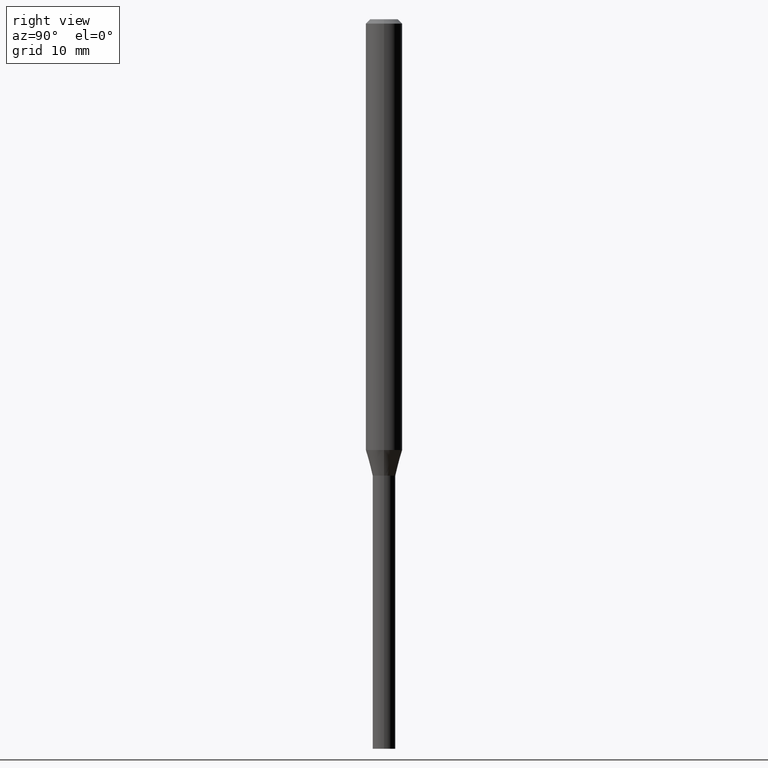
[diagram: clean part render]
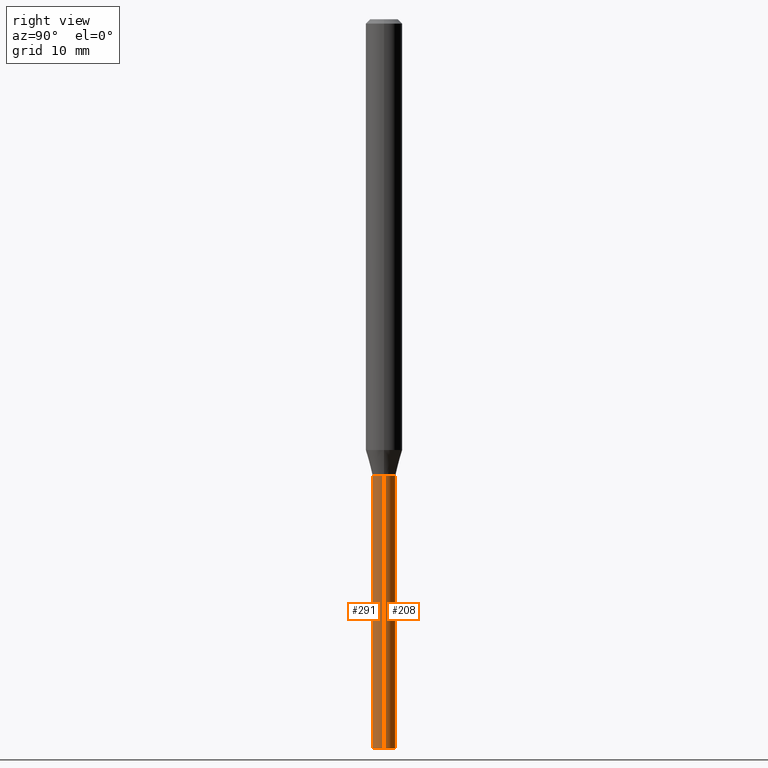
[diagram: same view with one multi-face feature highlighted, each face labeled with its STEP entity id]
A machine part, right view. The highlighted faces form ONE feature: a constant-radius fillet chain: 2 tangent blend faces with common blend radius 0.9906 mm. The faces share edges in the B-rep.
Their STEP definitions:
[1] entity #291 (Cylinder):
#3 = EDGE_LOOP ( 'NONE', ( #464, #337, #123, #191 ) ) ;
#8 = VERTEX_POINT ( 'NONE', #62 ) ;
#15 = VECTOR ( 'NONE', #206, 39.37007874015748143 ) ;
#19 = EDGE_CURVE ( 'NONE', #84, #235, #60, .T. ) ;
#41 = CARTESIAN_POINT ( 'NONE',  ( 3.824713212873553776E-29, -5.460676813950680100E-15, -1.564000000000000057 ) ) ;
#60 = LINE ( 'NONE', #310, #422 ) ;
#62 = CARTESIAN_POINT ( 'NONE',  ( 0.03899999999999999994, -5.733012358380444123E-15, -1.564000000000000057 ) ) ;
#81 = EDGE_CURVE ( 'NONE', #443, #8, #200, .T. ) ;
#82 = AXIS2_PLACEMENT_3D ( 'NONE', #41, #152, #370 ) ;
#84 = VERTEX_POINT ( 'NONE', #96 ) ;
#89 = EDGE_CURVE ( 'NONE', #84, #443, #279, .T. ) ;
#96 = CARTESIAN_POINT ( 'NONE',  ( -0.03899999999999999994, -6.817578413582832808E-15, -2.500000000000000000 ) ) ;
#123 = ORIENTED_EDGE ( 'NONE', *, *, #81, .T. ) ;
#126 = CARTESIAN_POINT ( 'NONE',  ( 0.03899999999999999994, -2.723355444297643682E-16, 1.901708942560414931E-30 ) ) ;
#139 = CARTESIAN_POINT ( 'NONE',  ( 0.000000000000000000, 0.000000000000000000, 0.000000000000000000 ) ) ;
#140 = DIRECTION ( 'NONE',  ( 1.000000000000000000, -6.982962677686265922E-15, 4.876176775795935793E-29 ) ) ;
#152 = DIRECTION ( 'NONE',  ( -2.445468806185136597E-29, 3.491481338843145583E-15, 1.000000000000000000 ) ) ;
#176 = CYLINDRICAL_SURFACE ( 'NONE', #447, 0.03899999999999999994 ) ;
#179 = DIRECTION ( 'NONE',  ( -2.445468806185136597E-29, 3.491481338843145583E-15, 1.000000000000000000 ) ) ;
#191 = ORIENTED_EDGE ( 'NONE', *, *, #460, .F. ) ;
#196 = DIRECTION ( 'NONE',  ( 1.000000000000000000, -6.982962677686283277E-15, 0.000000000000000000 ) ) ;
#200 = LINE ( 'NONE', #126, #15 ) ;
#206 = DIRECTION ( 'NONE',  ( -2.445468806185136877E-29, 3.491481338843145188E-15, 1.000000000000000000 ) ) ;
#235 = VERTEX_POINT ( 'NONE', #319 ) ;
#248 = DIRECTION ( 'NONE',  ( -2.445468806185136877E-29, 3.491481338843145188E-15, 1.000000000000000000 ) ) ;
#251 = AXIS2_PLACEMENT_3D ( 'NONE', #278, #301, #196 ) ;
#278 = CARTESIAN_POINT ( 'NONE',  ( 6.113672015462842613E-29, -8.728703347107864943E-15, -2.500000000000000000 ) ) ;
#279 = CIRCLE ( 'NONE', #251, 0.03899999999999999994 ) ;
#291 = ADVANCED_FACE ( 'NONE', ( #455 ), #176, .T. ) ;
#301 = DIRECTION ( 'NONE',  ( -2.445468806185136597E-29, 3.491481338843145583E-15, 1.000000000000000000 ) ) ;
#310 = CARTESIAN_POINT ( 'NONE',  ( -0.03899999999999999994, 2.771116669464390721E-16, -1.918384685199413078E-30 ) ) ;
#319 = CARTESIAN_POINT ( 'NONE',  ( -0.03899999999999999994, -6.817578413582832808E-15, -1.564000000000000057 ) ) ;
#330 = CARTESIAN_POINT ( 'NONE',  ( 0.03899999999999999994, -9.001038891537628966E-15, -2.500000000000000000 ) ) ;
#337 = ORIENTED_EDGE ( 'NONE', *, *, #89, .T. ) ;
#370 = DIRECTION ( 'NONE',  ( 1.000000000000000000, -6.982962677686258033E-15, 0.000000000000000000 ) ) ;
#422 = VECTOR ( 'NONE', #248, 39.37007874015748143 ) ;
#443 = VERTEX_POINT ( 'NONE', #330 ) ;
#447 = AXIS2_PLACEMENT_3D ( 'NONE', #139, #179, #140 ) ;
#452 = CIRCLE ( 'NONE', #82, 0.03899999999999999994 ) ;
#455 = FACE_OUTER_BOUND ( 'NONE', #3, .T. ) ;
#460 = EDGE_CURVE ( 'NONE', #235, #8, #452, .T. ) ;
#464 = ORIENTED_EDGE ( 'NONE', *, *, #19, .F. ) ;
[2] entity #208 (Cylinder):
#2 = DIRECTION ( 'NONE',  ( -2.445468806185136597E-29, 3.491481338843145583E-15, 1.000000000000000000 ) ) ;
#8 = VERTEX_POINT ( 'NONE', #62 ) ;
#15 = VECTOR ( 'NONE', #206, 39.37007874015748143 ) ;
#19 = EDGE_CURVE ( 'NONE', #84, #235, #60, .T. ) ;
#43 = EDGE_LOOP ( 'NONE', ( #87, #232, #378, #154 ) ) ;
#59 = CYLINDRICAL_SURFACE ( 'NONE', #119, 0.03899999999999999994 ) ;
#60 = LINE ( 'NONE', #310, #422 ) ;
#62 = CARTESIAN_POINT ( 'NONE',  ( 0.03899999999999999994, -5.733012358380444123E-15, -1.564000000000000057 ) ) ;
#81 = EDGE_CURVE ( 'NONE', #443, #8, #200, .T. ) ;
#83 = CARTESIAN_POINT ( 'NONE',  ( 3.824713212873553776E-29, -5.460676813950680100E-15, -1.564000000000000057 ) ) ;
#84 = VERTEX_POINT ( 'NONE', #96 ) ;
#87 = ORIENTED_EDGE ( 'NONE', *, *, #265, .T. ) ;
#96 = CARTESIAN_POINT ( 'NONE',  ( -0.03899999999999999994, -6.817578413582832808E-15, -2.500000000000000000 ) ) ;
#119 = AXIS2_PLACEMENT_3D ( 'NONE', #344, #380, #305 ) ;
#126 = CARTESIAN_POINT ( 'NONE',  ( 0.03899999999999999994, -2.723355444297643682E-16, 1.901708942560414931E-30 ) ) ;
#141 = AXIS2_PLACEMENT_3D ( 'NONE', #175, #317, #142 ) ;
#142 = DIRECTION ( 'NONE',  ( 1.000000000000000000, -6.982962677686283277E-15, 0.000000000000000000 ) ) ;
#154 = ORIENTED_EDGE ( 'NONE', *, *, #81, .F. ) ;
#175 = CARTESIAN_POINT ( 'NONE',  ( 6.113672015462842613E-29, -8.728703347107864943E-15, -2.500000000000000000 ) ) ;
#200 = LINE ( 'NONE', #126, #15 ) ;
#206 = DIRECTION ( 'NONE',  ( -2.445468806185136877E-29, 3.491481338843145188E-15, 1.000000000000000000 ) ) ;
#208 = ADVANCED_FACE ( 'NONE', ( #418 ), #59, .T. ) ;
#232 = ORIENTED_EDGE ( 'NONE', *, *, #19, .T. ) ;
#235 = VERTEX_POINT ( 'NONE', #319 ) ;
#248 = DIRECTION ( 'NONE',  ( -2.445468806185136877E-29, 3.491481338843145188E-15, 1.000000000000000000 ) ) ;
#252 = AXIS2_PLACEMENT_3D ( 'NONE', #83, #2, #260 ) ;
#256 = CIRCLE ( 'NONE', #141, 0.03899999999999999994 ) ;
#260 = DIRECTION ( 'NONE',  ( 1.000000000000000000, -6.982962677686258033E-15, 0.000000000000000000 ) ) ;
#265 = EDGE_CURVE ( 'NONE', #443, #84, #256, .T. ) ;
#305 = DIRECTION ( 'NONE',  ( 1.000000000000000000, -6.982962677686265922E-15, 4.876176775795935793E-29 ) ) ;
#310 = CARTESIAN_POINT ( 'NONE',  ( -0.03899999999999999994, 2.771116669464390721E-16, -1.918384685199413078E-30 ) ) ;
#317 = DIRECTION ( 'NONE',  ( -2.445468806185136597E-29, 3.491481338843145583E-15, 1.000000000000000000 ) ) ;
#319 = CARTESIAN_POINT ( 'NONE',  ( -0.03899999999999999994, -6.817578413582832808E-15, -1.564000000000000057 ) ) ;
#330 = CARTESIAN_POINT ( 'NONE',  ( 0.03899999999999999994, -9.001038891537628966E-15, -2.500000000000000000 ) ) ;
#344 = CARTESIAN_POINT ( 'NONE',  ( 0.000000000000000000, 0.000000000000000000, 0.000000000000000000 ) ) ;
#347 = CIRCLE ( 'NONE', #252, 0.03899999999999999994 ) ;
#378 = ORIENTED_EDGE ( 'NONE', *, *, #436, .F. ) ;
#380 = DIRECTION ( 'NONE',  ( -2.445468806185136597E-29, 3.491481338843145583E-15, 1.000000000000000000 ) ) ;
#418 = FACE_OUTER_BOUND ( 'NONE', #43, .T. ) ;
#422 = VECTOR ( 'NONE', #248, 39.37007874015748143 ) ;
#436 = EDGE_CURVE ( 'NONE', #8, #235, #347, .T. ) ;
#443 = VERTEX_POINT ( 'NONE', #330 ) ;